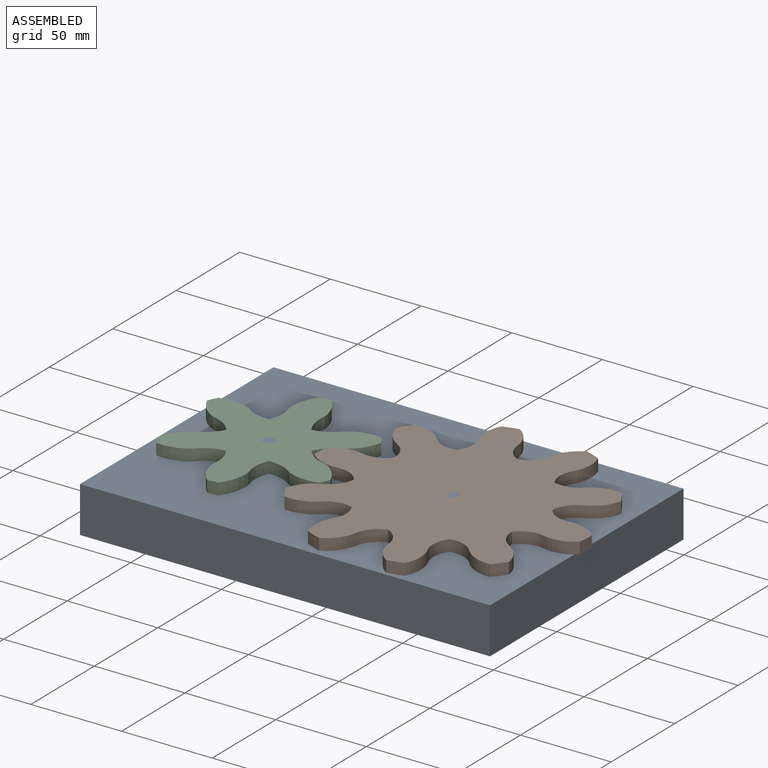
[diagram: assembled view]
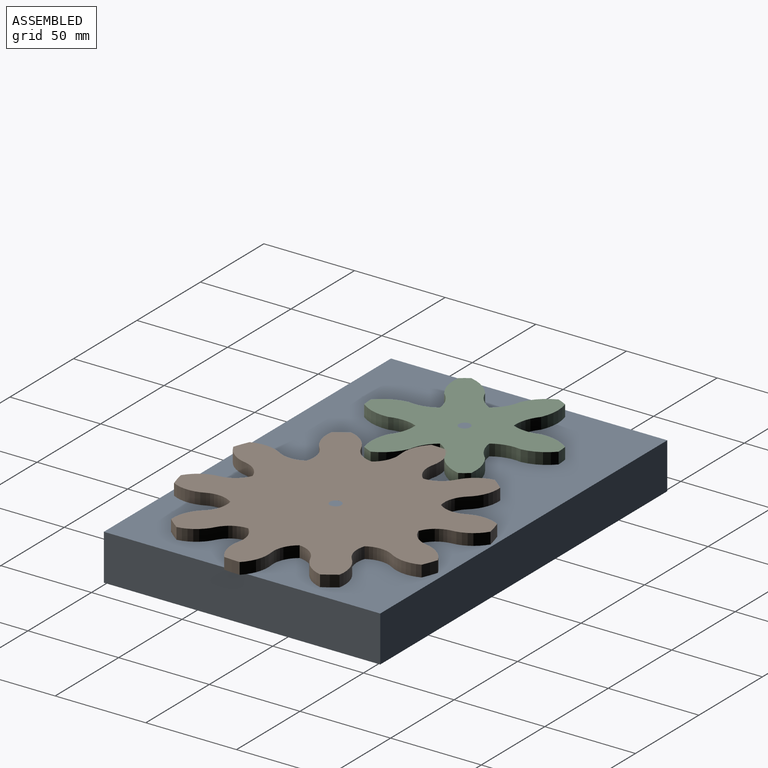
[diagram: assembled view, second angle]
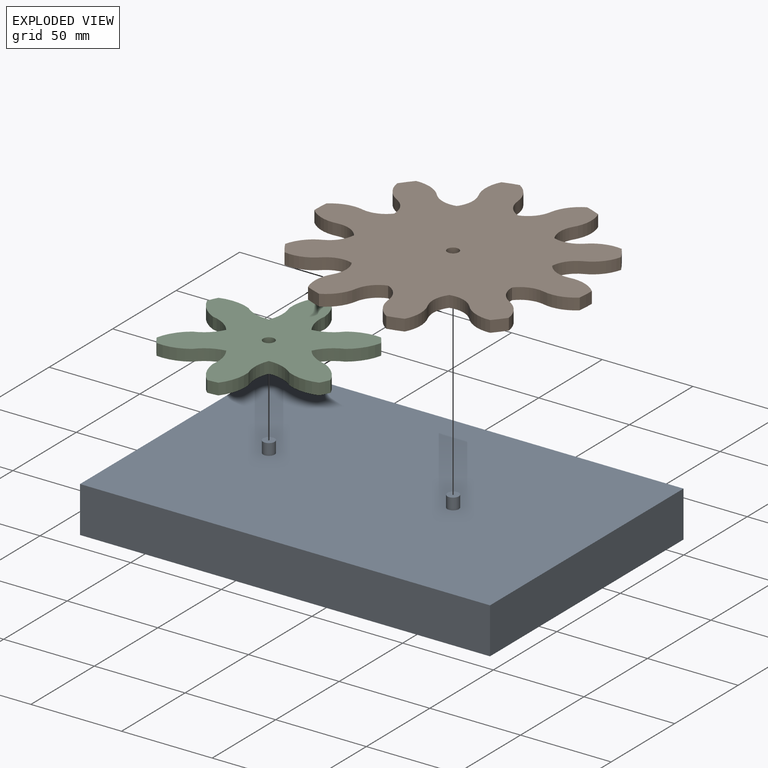
[diagram: exploded view]
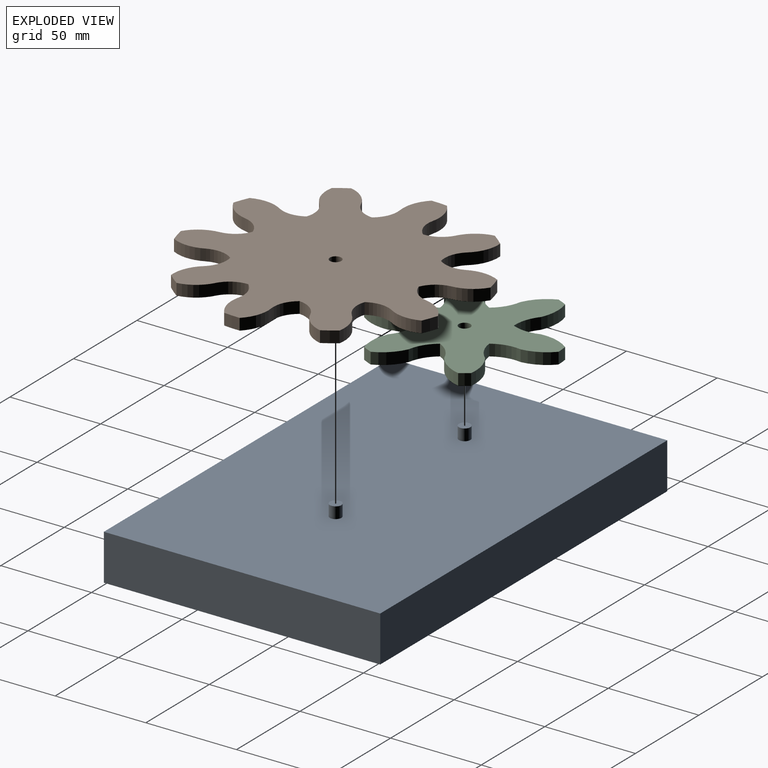
[diagram: exploded view, second angle]
ASSEMBLY  parts=3 mates=2
PART A: 10 faces, bbox 226.1x152.4x31.8 mm
  f0: plane 226.12x25.4mm, normal (0,-1,0), area 5743.4mm2, adj f1,f3,f4,f5
  f1: plane 152.4x25.4mm, normal (1,0,0), area 3871mm2, adj f0,f2,f4,f5
  f2: plane 226.12x25.4mm, normal (0,1,0), area 5743.4mm2, adj f1,f3,f4,f5
  f3: plane 152.4x25.4mm, normal (-1,0,0), area 3871mm2, adj f0,f2,f4,f5
  f4: plane 226.12x152.4mm, normal (0,0,-1), area 34460.2mm2, adj f0,f1,f2,f3
  f5: plane 226.12x152.4mm, normal (0,0,1), area 34396.9mm2, adj f0,f1,f2,f3,f7,f9
  f6: plane 6.35x6.35mm, normal (0,0,1), area 31.7mm2, adj f7
  f7: cylinder r=3.17mm len=6.35mm, axis (0,0,-1), area 126.7mm2, adj f5,f6
  f8: plane 6.35x6.35mm, normal (0,0,1), area 31.7mm2, adj f9
  f9: cylinder r=3.17mm len=6.35mm, axis (0,0,-1), area 126.7mm2, adj f5,f8
PART B: 63 faces, bbox 147.4x152.4x6.4 mm
  f0: plane 152.4x147.43mm, normal (0,0,1), area 12402.7mm2, adj f2,f3,f4,f5,f6,f7,f8,f9
  f1: plane 152.4x147.43mm, normal (0,0,-1), area 12402.7mm2, adj f2,f3,f4,f5,f6,f7,f8,f9
  f2: cylinder r=14.43mm len=11.31mm, axis (0,0,-1), area 97.7mm2, adj f0,f1,f3,f11
  f3: cylinder r=19.44mm len=14.78mm, axis (0,0,-1), area 117.6mm2, adj f0,f1,f2,f4
  f4: plane 6.35x4.25mm, normal (-0.96,-0.28,0), area 28.1mm2, adj f0,f1,f3,f7
  f5: cylinder r=14.43mm len=14.64mm, axis (0,0,-1), area 97.7mm2, adj f0,f1,f6,f56
  f6: cylinder r=19.44mm len=17.81mm, axis (0,0,-1), area 117.6mm2, adj f0,f1,f5,f7
  f7: plane 6.35x4.17mm, normal (-0.94,-0.34,0), area 28.1mm2, adj f0,f1,f4,f6
  f8: cylinder r=14.43mm len=14.64mm, axis (0,0,-1), area 97.7mm2, adj f0,f1,f9,f17
  f9: cylinder r=19.44mm len=17.81mm, axis (0,0,-1), area 117.6mm2, adj f0,f1,f8,f10
  f10: plane 6.35x4.17mm, normal (-0.94,0.34,0), area 28.1mm2, adj f0,f1,f9,f13
  f11: cylinder r=14.43mm len=11.31mm, axis (0,0,-1), area 97.7mm2, adj f0,f1,f2,f12
  f12: cylinder r=19.44mm len=14.78mm, axis (0,0,-1), area 117.6mm2, adj f0,f1,f11,f13
  f13: plane 6.35x4.25mm, normal (-0.96,0.28,0), area 28.1mm2, adj f0,f1,f10,f12
  f14: cylinder r=14.43mm len=12.37mm, axis (0,0,-1), area 97.7mm2, adj f0,f1,f15,f23
  f15: cylinder r=19.44mm len=14.04mm, axis (0,0,-1), area 117.6mm2, adj f0,f1,f14,f16
  f16: plane 6.35x3.66mm, normal (-0.56,0.83,0), area 28.1mm2, adj f0,f1,f15,f19
  f17: cylinder r=14.43mm len=14.2mm, axis (0,0,-1), area 97.7mm2, adj f0,f1,f8,f18
  f18: cylinder r=19.44mm len=16.75mm, axis (0,0,-1), area 117.6mm2, adj f0,f1,f17,f19
  f19: plane 6.35x3.51mm, normal (-0.61,0.79,0), area 28.1mm2, adj f0,f1,f16,f18
  f20: cylinder r=14.43mm len=13.64mm, axis (0,0,-1), area 97.7mm2, adj f0,f1,f21,f29
  f21: cylinder r=19.44mm len=17.14mm, axis (0,0,-1), area 117.6mm2, adj f0,f1,f20,f22
  f22: plane 6.35x4.43mm, normal (0.03,1,0), area 28.1mm2, adj f0,f1,f21,f25
  f23: cylinder r=14.43mm len=13.64mm, axis (0,0,-1), area 97.7mm2, adj f0,f1,f14,f24
  f24: cylinder r=19.44mm len=17.14mm, axis (0,0,-1), area 117.6mm2, adj f0,f1,f23,f25
  f25: plane 6.35x4.43mm, normal (-0.03,1,0), area 28.1mm2, adj f0,f1,f22,f24
  f26: cylinder r=14.43mm len=14.2mm, axis (0,0,-1), area 97.7mm2, adj f0,f1,f27,f35
  f27: cylinder r=19.44mm len=16.75mm, axis (0,0,-1), area 117.6mm2, adj f0,f1,f26,f28
  f28: plane 6.35x3.51mm, normal (0.61,0.79,0), area 28.1mm2, adj f0,f1,f27,f31
  f29: cylinder r=14.43mm len=12.37mm, axis (0,0,-1), area 97.7mm2, adj f0,f1,f20,f30
  f30: cylinder r=19.44mm len=14.04mm, axis (0,0,-1), area 117.6mm2, adj f0,f1,f29,f31
  f31: plane 6.35x3.66mm, normal (0.56,0.83,0), area 28.1mm2, adj f0,f1,f28,f30
  f32: cylinder r=14.43mm len=11.31mm, axis (0,0,-1), area 97.7mm2, adj f0,f1,f33,f41
  f33: cylinder r=19.44mm len=14.78mm, axis (0,0,-1), area 117.6mm2, adj f0,f1,f32,f34
  f34: plane 6.35x4.25mm, normal (0.96,0.28,0), area 28.1mm2, adj f0,f1,f33,f37
  f35: cylinder r=14.43mm len=14.64mm, axis (0,0,-1), area 97.7mm2, adj f0,f1,f26,f36
  f36: cylinder r=19.44mm len=17.81mm, axis (0,0,-1), area 117.6mm2, adj f0,f1,f35,f37
  f37: plane 6.35x4.17mm, normal (0.94,0.34,0), area 28.1mm2, adj f0,f1,f34,f36
  f38: cylinder r=14.43mm len=14.64mm, axis (0,0,-1), area 97.7mm2, adj f0,f1,f39,f47
  f39: cylinder r=19.44mm len=17.81mm, axis (0,0,-1), area 117.6mm2, adj f0,f1,f38,f40
  f40: plane 6.35x4.17mm, normal (0.94,-0.34,0), area 28.1mm2, adj f0,f1,f39,f43
  f41: cylinder r=14.43mm len=11.31mm, axis (0,0,-1), area 97.7mm2, adj f0,f1,f32,f42
  f42: cylinder r=19.44mm len=14.78mm, axis (0,0,-1), area 117.6mm2, adj f0,f1,f41,f43
  f43: plane 6.35x4.25mm, normal (0.96,-0.28,0), area 28.1mm2, adj f0,f1,f40,f42
  f44: cylinder r=14.43mm len=12.37mm, axis (0,0,-1), area 97.7mm2, adj f0,f1,f45,f53
  f45: cylinder r=19.44mm len=14.04mm, axis (0,0,-1), area 117.6mm2, adj f0,f1,f44,f46
  f46: plane 6.35x3.66mm, normal (0.56,-0.83,0), area 28.1mm2, adj f0,f1,f45,f49
  f47: cylinder r=14.43mm len=14.2mm, axis (0,0,-1), area 97.7mm2, adj f0,f1,f38,f48
  f48: cylinder r=19.44mm len=16.75mm, axis (0,0,-1), area 117.6mm2, adj f0,f1,f47,f49
  f49: plane 6.35x3.51mm, normal (0.61,-0.79,0), area 28.1mm2, adj f0,f1,f46,f48
  f50: cylinder r=14.43mm len=13.64mm, axis (0,0,-1), area 97.7mm2, adj f0,f1,f51,f59
  f51: cylinder r=19.44mm len=17.14mm, axis (0,0,-1), area 117.6mm2, adj f0,f1,f50,f52
  f52: plane 6.35x4.43mm, normal (-0.03,-1,0), area 28.1mm2, adj f0,f1,f51,f55
  f53: cylinder r=14.43mm len=13.64mm, axis (0,0,-1), area 97.7mm2, adj f0,f1,f44,f54
  f54: cylinder r=19.44mm len=17.14mm, axis (0,0,-1), area 117.6mm2, adj f0,f1,f53,f55
  f55: plane 6.35x4.43mm, normal (0.03,-1,0), area 28.1mm2, adj f0,f1,f52,f54
  f56: cylinder r=14.43mm len=14.2mm, axis (0,0,-1), area 97.7mm2, adj f0,f1,f5,f57
  f57: cylinder r=19.44mm len=16.75mm, axis (0,0,-1), area 117.6mm2, adj f0,f1,f56,f58
  f58: plane 6.35x3.51mm, normal (-0.61,-0.79,0), area 28.1mm2, adj f0,f1,f57,f61
  f59: cylinder r=14.43mm len=12.37mm, axis (0,0,-1), area 97.7mm2, adj f0,f1,f50,f60
  f60: cylinder r=19.44mm len=14.04mm, axis (0,0,-1), area 117.6mm2, adj f0,f1,f59,f61
  f61: plane 6.35x3.66mm, normal (-0.56,-0.83,0), area 28.1mm2, adj f0,f1,f58,f60
  f62: cylinder r=3.17mm len=6.35mm, axis (0,0,-1), area 126.7mm2, adj f0,f1
PART C: 39 faces, bbox 101.6x90.8x6.4 mm
  f0: plane 6.35x2.95mm, normal (1,0.03,0), area 18.8mm2, adj f1,f3,f4,f5
  f1: cylinder r=24.24mm len=16.13mm, axis (0,0,-1), area 112.5mm2, adj f0,f2,f3,f4
  f2: cylinder r=20.74mm len=15.34mm, axis (0,0,-1), area 100.5mm2, adj f1,f3,f4,f13
  f3: plane 101.6x90.79mm, normal (0,0,1), area 4348.6mm2, adj f0,f1,f2,f5,f6,f7,f8,f9
  f4: plane 101.6x90.79mm, normal (0,0,-1), area 4348.6mm2, adj f0,f1,f2,f5,f6,f7,f8,f9
  f5: plane 6.35x2.95mm, normal (1,-0.03,0), area 18.8mm2, adj f0,f3,f4,f6
  f6: cylinder r=24.24mm len=16.13mm, axis (0,0,-1), area 112.5mm2, adj f3,f4,f5,f7
  f7: cylinder r=20.74mm len=15.34mm, axis (0,0,-1), area 100.5mm2, adj f3,f4,f6,f34
  f8: plane 6.35x2.6mm, normal (0.47,0.88,0), area 18.8mm2, adj f3,f4,f9,f11
  f9: cylinder r=24.24mm len=13.53mm, axis (0,0,-1), area 112.5mm2, adj f3,f4,f8,f10
  f10: cylinder r=20.74mm len=12.36mm, axis (0,0,-1), area 100.5mm2, adj f3,f4,f9,f19
  f11: plane 6.35x2.52mm, normal (0.52,0.85,0), area 18.8mm2, adj f3,f4,f8,f12
  f12: cylinder r=24.24mm len=17.13mm, axis (0,0,-1), area 112.5mm2, adj f3,f4,f11,f13
  f13: cylinder r=20.74mm len=14.2mm, axis (0,0,-1), area 100.5mm2, adj f2,f3,f4,f12
  f14: plane 6.35x2.52mm, normal (-0.52,0.85,0), area 18.8mm2, adj f3,f4,f15,f17
  f15: cylinder r=24.24mm len=17.13mm, axis (0,0,-1), area 112.5mm2, adj f3,f4,f14,f16
  f16: cylinder r=20.74mm len=14.2mm, axis (0,0,-1), area 100.5mm2, adj f3,f4,f15,f25
  f17: plane 6.35x2.6mm, normal (-0.47,0.88,0), area 18.8mm2, adj f3,f4,f14,f18
  f18: cylinder r=24.24mm len=13.53mm, axis (0,0,-1), area 112.5mm2, adj f3,f4,f17,f19
  f19: cylinder r=20.74mm len=12.36mm, axis (0,0,-1), area 100.5mm2, adj f3,f4,f10,f18
  f20: plane 6.35x2.95mm, normal (-1,-0.03,0), area 18.8mm2, adj f3,f4,f21,f23
  f21: cylinder r=24.24mm len=16.13mm, axis (0,0,-1), area 112.5mm2, adj f3,f4,f20,f22
  f22: cylinder r=20.74mm len=15.34mm, axis (0,0,-1), area 100.5mm2, adj f3,f4,f21,f31
  f23: plane 6.35x2.95mm, normal (-1,0.03,0), area 18.8mm2, adj f3,f4,f20,f24
  f24: cylinder r=24.24mm len=16.13mm, axis (0,0,-1), area 112.5mm2, adj f3,f4,f23,f25
  f25: cylinder r=20.74mm len=15.34mm, axis (0,0,-1), area 100.5mm2, adj f3,f4,f16,f24
  f26: plane 6.35x2.6mm, normal (-0.47,-0.88,0), area 18.8mm2, adj f3,f4,f27,f29
  f27: cylinder r=24.24mm len=13.53mm, axis (0,0,-1), area 112.5mm2, adj f3,f4,f26,f28
  f28: cylinder r=20.74mm len=12.36mm, axis (0,0,-1), area 100.5mm2, adj f3,f4,f27,f37
  f29: plane 6.35x2.52mm, normal (-0.52,-0.85,0), area 18.8mm2, adj f3,f4,f26,f30
  f30: cylinder r=24.24mm len=17.13mm, axis (0,0,-1), area 112.5mm2, adj f3,f4,f29,f31
  f31: cylinder r=20.74mm len=14.2mm, axis (0,0,-1), area 100.5mm2, adj f3,f4,f22,f30
  f32: plane 6.35x2.52mm, normal (0.52,-0.85,0), area 18.8mm2, adj f3,f4,f33,f35
  f33: cylinder r=24.24mm len=17.13mm, axis (0,0,-1), area 112.5mm2, adj f3,f4,f32,f34
  f34: cylinder r=20.74mm len=14.2mm, axis (0,0,-1), area 100.5mm2, adj f3,f4,f7,f33
  f35: plane 6.35x2.6mm, normal (0.47,-0.88,0), area 18.8mm2, adj f3,f4,f32,f36
  f36: cylinder r=24.24mm len=13.53mm, axis (0,0,-1), area 112.5mm2, adj f3,f4,f35,f37
  f37: cylinder r=20.74mm len=12.36mm, axis (0,0,-1), area 100.5mm2, adj f3,f4,f28,f36
  f38: cylinder r=3.17mm len=6.35mm, axis (0,0,-1), area 126.7mm2, adj f3,f4
PLACE A t=(-79.76,-20.05,-5.39)mm fixed
PLACE B rot(axis=(0,0,-1),165deg) t=(119.98,6.25,-5.39)mm
PLACE C rot(axis=(0,0,1),155deg) t=(-79.76,-20.05,-5.39)mm
MATE revolute B.f62 <-> A.f7  axis (0,0,1) through (21.84,-20.05,0.96)mm
MATE revolute A.f9 <-> C.f38  axis (0,0,1) through (-79.76,-20.05,0.96)mm
